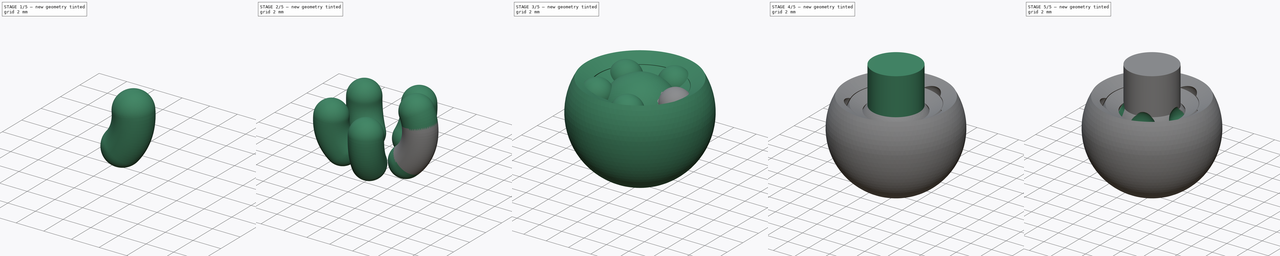
[diagram: build sequence overview — one tinted view per stage of 5, left to right]
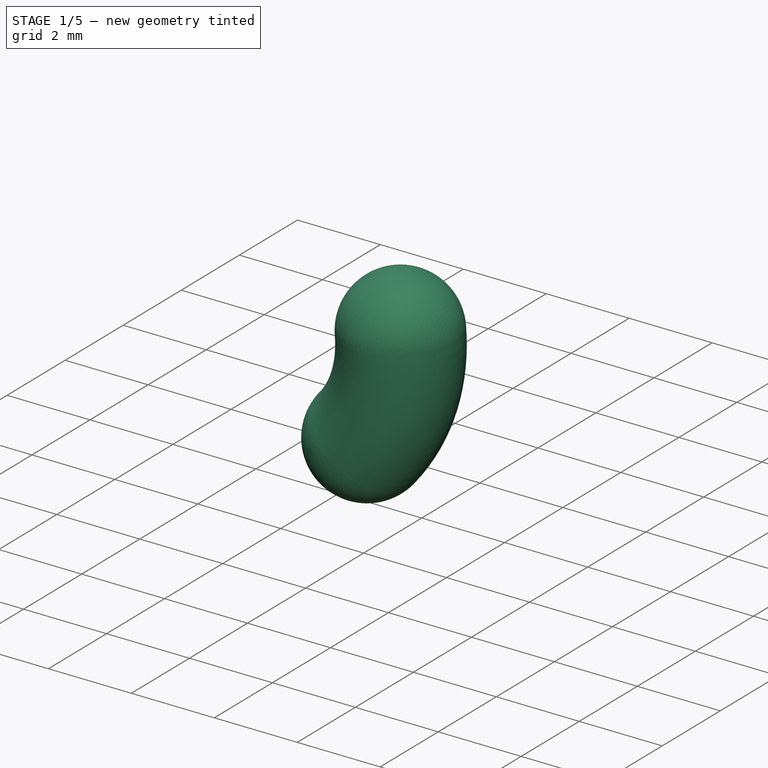
[diagram: stage 1 of 5 — iso view after this stage's code; geometry added in this stage tinted green]
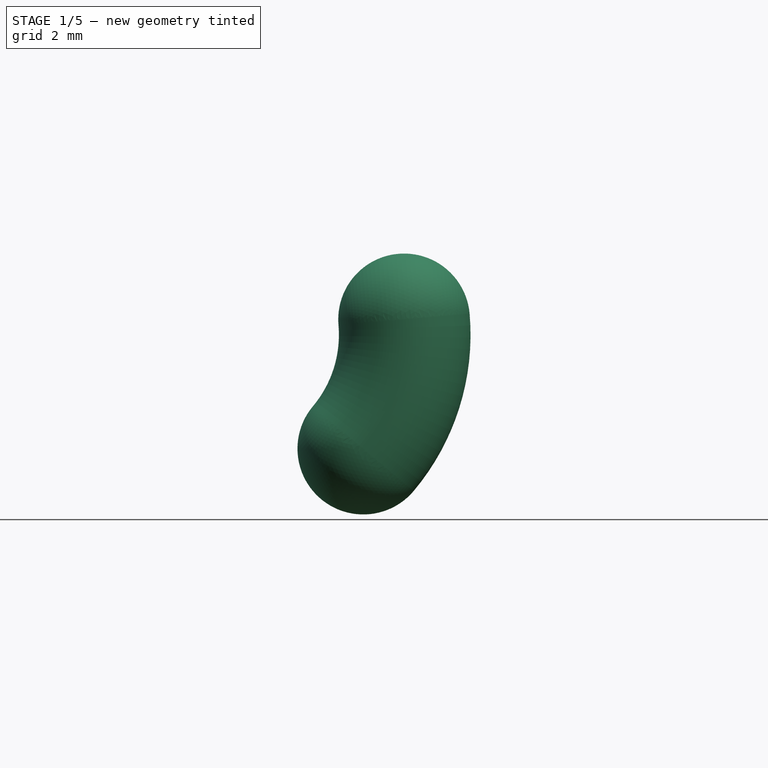
[diagram: stage 1 of 5 — front view after this stage's code; geometry added in this stage tinted green]
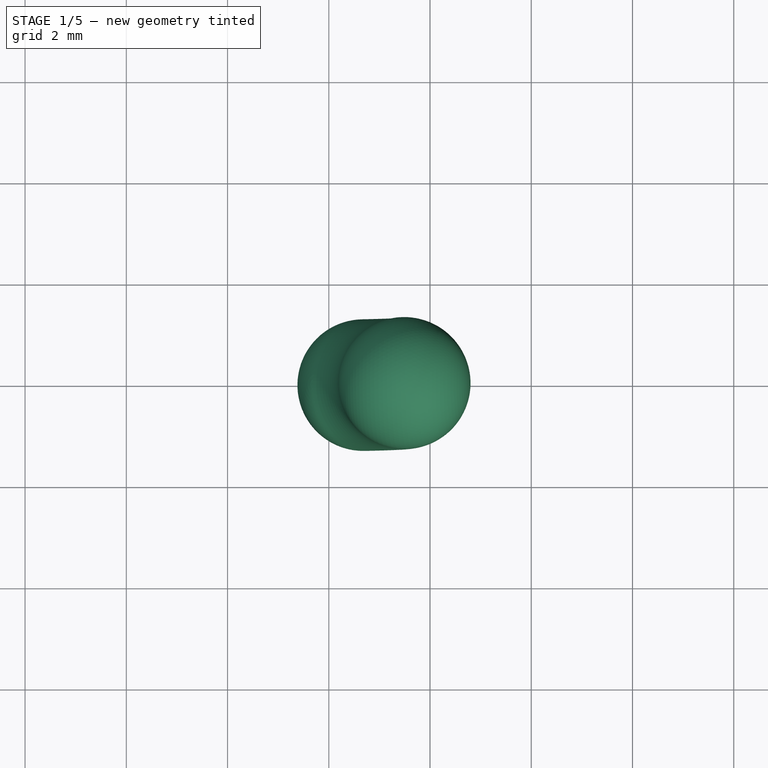
[diagram: stage 1 of 5 — top view after this stage's code; geometry added in this stage tinted green]
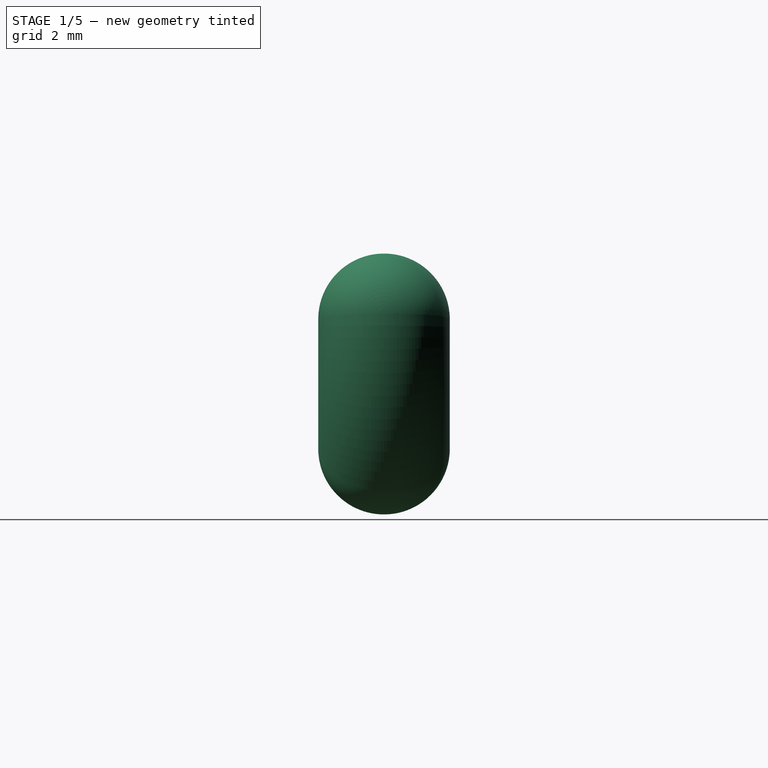
[diagram: stage 1 of 5 — right view after this stage's code; geometry added in this stage tinted green]
FCSTD DOCUMENT  (FreeCAD 1.0R39319 (Git))
Label: RzeppaJoint
Comment: A FreeCAD implementation of the Rzeppa Joint.\n\nI based this on my first iteration in OpenSCAD version, supporting some improvements\n\n- better parametric support for smaller ball sizes.\n- better c... (+48 chars)
License: All rights reserved
LicenseURL: https://en.wikipedia.org/wiki/All_rights_reserved
objects: Sketcher::SketchObject×13, PartDesign::Body×12, PartDesign::Revolution×8, PartDesign::SubShapeBinder×3, PartDesign::PolarPattern×3, PartDesign::FeatureBase×3, Part::Cut×3, PartDesign::AdditivePipe×2, App::Part×2, PartDesign::Plane×2, Spreadsheet::Sheet×2, PartDesign::Boolean×1, PartDesign::Pad×1
note: 93 computed .brp shape members not serialized (recipe doc carries the construction recipe); baked Part::Feature solids carry a one-line shape summary decoded from their .brp

FEATURE [PartDesign::SubShapeBinder] Binder
  BindCopyOnChange = 0
  BindMode = 0
  ClaimChildren = false
  Context = -> Part014 [Part004.Body008.Binder.]
  Fuse = false
  MakeFace = true
  OffsetFill = false
  OffsetIntersection = false
  OffsetJoinType = 0
  OffsetOpenResult = false
  PartialLoad = false
  Refine = true
  Relative = true
  Support = -> [Body005[Boolean.Body004.Sketch006.]]
  _Version = 2
FEATURE [PartDesign::SubShapeBinder] Binder002
  BindCopyOnChange = 0
  BindMode = 0
  ClaimChildren = false
  Context = -> Part014 [Part002.Body005.Boolean.Body003.Binder002.]
  Fuse = false
  MakeFace = true
  OffsetFill = false
  OffsetIntersection = false
  OffsetJoinType = 0
  OffsetOpenResult = false
  PartialLoad = false
  Refine = true
  Relative = true
  Support = -> [Body002[AdditivePipe.]]
  _Version = 2
FEATURE [PartDesign::SubShapeBinder] Binder003
  BindCopyOnChange = 0
  BindMode = 0
  ClaimChildren = false
  Context = -> Part014 [Part002.Body005.Boolean.Body004.Binder003.]
  Fuse = false
  MakeFace = true
  OffsetFill = false
  OffsetIntersection = false
  OffsetJoinType = 0
  OffsetOpenResult = false
  PartialLoad = false
  Refine = true
  Relative = true
  Support = -> [Body002[AdditivePipe.]]
  _Version = 2
FEATURE [Sketcher::SketchObject] Sketch001  label="rzeppa ball track"
  ArcFitTolerance = 1e-06
  AttachmentSupport = -> [XZ_Plane004]
  FullyConstrained = true
  MakeInternals = false
  MapMode = 5
  Placement = pos=(0,0,0) rot=(1,0,0;1.5708rad)
  expr: Constraints[10] = <<ss_rzeppa>>.cage_ball_track_upper_angle
  expr: Constraints[8] = <<ss_rzeppa>>.r_ball_tracks
  expr: Constraints[9] = <<ss_rzeppa>>.cage_ball_track_lower_angle
  sketch-geometry (4):
    g0: ArcOfCircle CenterX=0 CenterY=0 CenterZ=0 NormalX=0 NormalY=0 NormalZ=1 AngleXU=0 Radius=3.5 StartAngle=5.58505 EndAngle=6.37045
    g1: LineSegment [constr] StartX=0 StartY=0 StartZ=0 EndX=3.5 EndY=0 EndZ=0
    g2: LineSegment [constr] StartX=0 StartY=0 StartZ=0 EndX=3.48668 EndY=0.305045 EndZ=0
    g3: LineSegment [constr] StartX=0 StartY=0 StartZ=0 EndX=2.68116 EndY=-2.24976 EndZ=0
  constraints (11):
    c: Coincident(g0,g-1)
    c: Coincident(g1,g0)
    c: PointOnObject(g1,g0)
    c: Horizontal(g1)
    c: Coincident(g2,g0)
    c: Coincident(g2,g0)
    c: Coincident(g3,g0)
    c: Coincident(g3,g0)
    c: Radius(g0) = 3.5
    c: Angle(g3,g1) = 0.698132
    c: Angle(g1,g2) = 0.0872665
FEATURE [Sketcher::SketchObject] Sketch002  label="ball profile"
  ArcFitTolerance = 1e-06
  AttachmentSupport = -> [XY_Plane004]
  ExternalGeometry = -> [Sketch001]
  FullyConstrained = true
  MakeInternals = false
  MapMode = 5
  expr: Constraints[0] = <<ss_rzeppa>>.ball_track_diameter / 2
  sketch-geometry (1):
    g0: Circle CenterX=3.5 CenterY=-1e-16 CenterZ=0 NormalX=0 NormalY=0 NormalZ=1 AngleXU=0 Radius=1.3
  constraints (2):
    c: Radius(g0) = 1.3
    c: Coincident(g0,g-3)
FEATURE [PartDesign::AdditivePipe] AdditivePipe
  AuxilleryCurvelinear = true
  AuxillerySpineTangent = false
  Binormal = (0,0,0)
  Mode = 0
  Profile = -> Sketch002
  Refine = true
  Spine = -> Sketch001
  SpineTangent = false
  Suppressed = false
  Transformation = 0
  Transition = 0
FEATURE [PartDesign::Body] Body001  label="Body"
  AllowCompound = true
  Group = -> [Sketch004,Revolution001]
  Origin = -> Origin003
  Tip = -> Revolution001
FEATURE [Sketcher::SketchObject] Sketch005
  ArcFitTolerance = 1e-06
  AttachmentSupport = -> [Binder002]
  ExternalGeometry = -> [Binder002]
  FullyConstrained = true
  MakeInternals = false
  MapMode = 5
  Placement = pos=(1e-16,0,2e-16) rot=(0.939693,0,-0.34202;3.14159rad)
  sketch-geometry (2):
    g0: LineSegment StartX=2.2 StartY=8e-16 StartZ=0 EndX=4.8 EndY=8e-16 EndZ=0
    g1: ArcOfCircle CenterX=3.5 CenterY=6e-16 CenterZ=0 NormalX=0 NormalY=0 NormalZ=1 AngleXU=0 Radius=1.3 StartAngle=3.14159 EndAngle=6.28319
  constraints (6):
    c: PointOnObject(g0,g-3)
    c: Horizontal(g0)
    c: Coincident(g1,g-3)
    c: Coincident(g1,g0)
    c: Coincident(g1,g0)
    c: PointOnObject(g1,g0)
FEATURE [PartDesign::Revolution] Revolution002
  Angle = 360
  Angle2 = 60
  Axis = (0.766044,0,-0.642788)
  Base = (1.6853,-8e-16,-1.41413)
  Profile = -> Sketch005
  ReferenceAxis = -> Sketch005 [Edge1]
  Refine = true
  Reversed = true
  Suppressed = false
  Type = 0
FEATURE [PartDesign::Body] Body003
  AllowCompound = false
  Group = -> [Binder002,Sketch005,Revolution002]
  Origin = -> Origin005
  Tip = -> Revolution002
FEATURE [Sketcher::SketchObject] Sketch006
  ArcFitTolerance = 1e-06
  AttachmentSupport = -> [Binder003]
  ExternalGeometry = -> [Binder003]
  FullyConstrained = true
  MakeInternals = false
  MapMode = 5
  Placement = pos=(0,0,1e-16) rot=(0,-1,0;0.087266rad)
  sketch-geometry (2):
    g0: LineSegment StartX=2.2 StartY=-3e-16 StartZ=0 EndX=4.8 EndY=-3e-16 EndZ=0
    g1: ArcOfCircle CenterX=3.5 CenterY=0 CenterZ=0 NormalX=0 NormalY=0 NormalZ=1 AngleXU=0 Radius=1.3 StartAngle=3.14159 EndAngle=6.28319
  constraints (6):
    c: PointOnObject(g0,g-3)
    c: Horizontal(g0)
    c: Coincident(g1,g-3)
    c: Coincident(g1,g0)
    c: Coincident(g1,g0)
    c: PointOnObject(g1,g0)
FEATURE [PartDesign::Revolution] Revolution003
  Angle = 360
  Angle2 = 60
  Axis = (0.996195,0,0.0871557)
  Base = (2.19163,-3e-16,0.191743)
  Profile = -> Sketch006
  ReferenceAxis = -> Sketch006 [Edge1]
  Refine = true
  Reversed = true
  Suppressed = false
  Type = 0
FEATURE [PartDesign::Body] Body004
  AllowCompound = false
  Group = -> [Binder003,Sketch006,Revolution003]
  Origin = -> Origin006
  Tip = -> Revolution003
FEATURE [PartDesign::Boolean] Boolean
  Group = -> [Body004,Body003,Body002]
  Refine = true
  Suppressed = false
  Type = 0
  UsePlacement = true
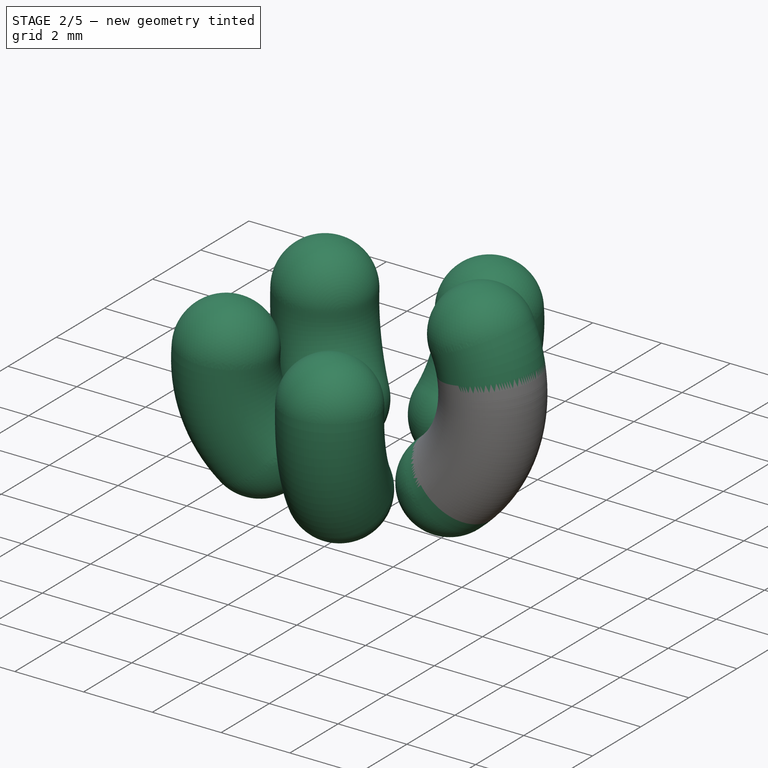
[diagram: stage 2 of 5 — iso view after this stage's code; geometry added in this stage tinted green]
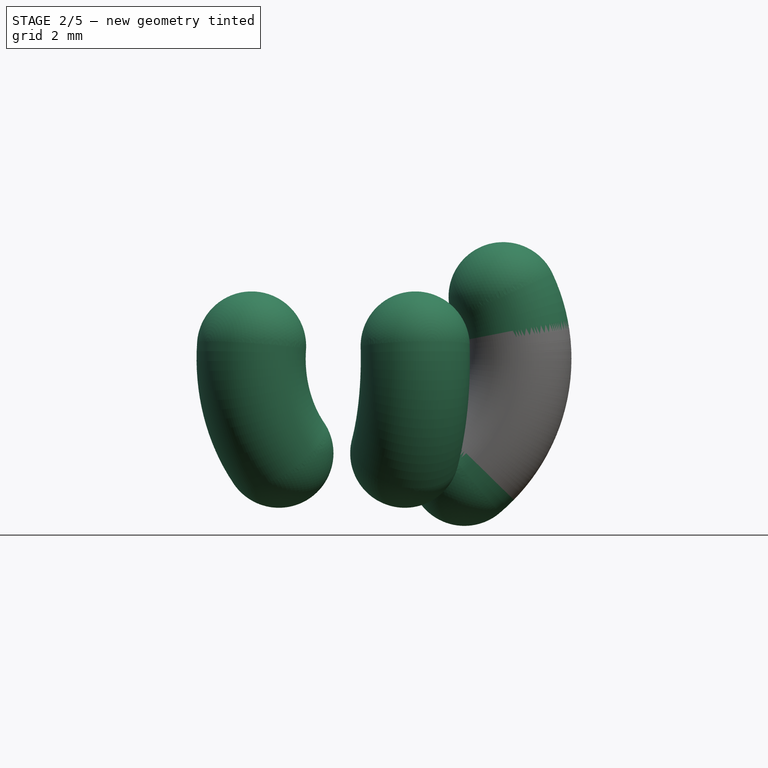
[diagram: stage 2 of 5 — front view after this stage's code; geometry added in this stage tinted green]
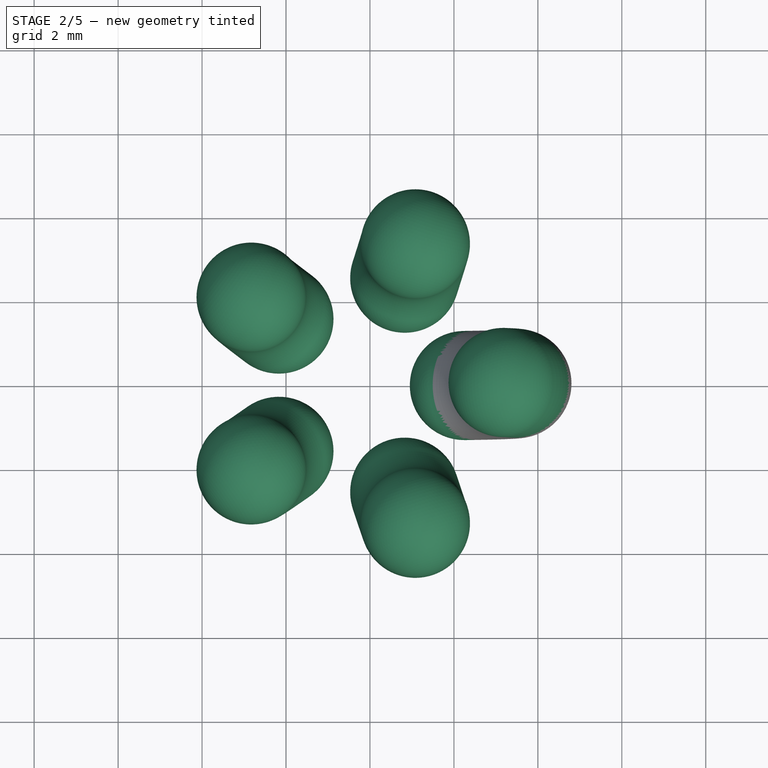
[diagram: stage 2 of 5 — top view after this stage's code; geometry added in this stage tinted green]
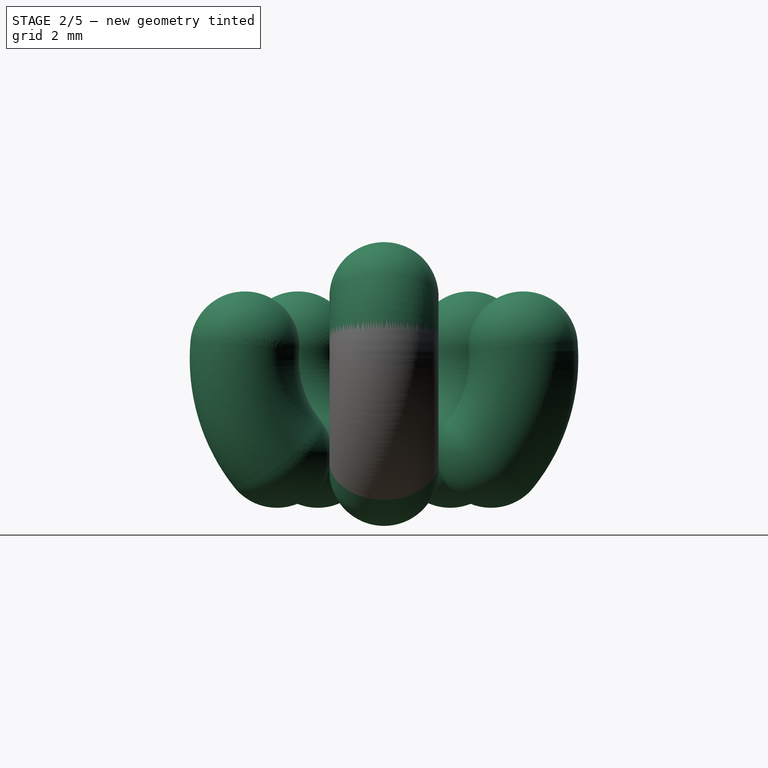
[diagram: stage 2 of 5 — right view after this stage's code; geometry added in this stage tinted green]
FEATURE [PartDesign::PolarPattern] PolarPattern
  Angle = 360
  Axis = -> Z_Axis009
  BaseFeature = -> Boolean
  Mode = 0
  Occurrences = 5
  Offset = 120
  Originals = -> [Boolean]
  Refine = true
  Suppressed = false
  TransformMode = 1
  expr: Occurrences = <<ss_rzeppa>>.rzeppa_num_balls
FEATURE [PartDesign::Body] Body008  label="a rzeppa ball"
  AllowCompound = true
  Group = -> [Binder,Sketch007,Revolution004,PolarPattern002]
  Origin = -> Origin012
  Tip = -> PolarPattern002
FEATURE [App::Part] Part004  label="rzeppa balls"
  Group = -> [Body008]
  Origin = -> Origin019
FEATURE [Sketcher::SketchObject] Sketch048  label="rzeppa ball track002"
  ArcFitTolerance = 1e-06
  AttachmentSupport = -> [XZ_Plane064]
  FullyConstrained = true
  MakeInternals = false
  MapMode = 5
  Placement = pos=(0,0,0) rot=(1,0,0;1.5708rad)
  expr: Constraints[10] = <<ss_rzeppa>>.race_ball_track_upper_angle
  expr: Constraints[8] = <<ss_rzeppa>>.r_ball_tracks
  expr: Constraints[9] = <<ss_rzeppa>>.race_ball_track_lower_angle
  sketch-geometry (4):
    g0: ArcOfCircle CenterX=0 CenterY=0 CenterZ=0 NormalX=0 NormalY=0 NormalZ=1 AngleXU=0 Radius=3.5 StartAngle=5.41052 EndAngle=6.71952
    g1: LineSegment [constr] StartX=0 StartY=0 StartZ=0 EndX=3.5 EndY=0 EndZ=0
    g2: LineSegment [constr] StartX=0 StartY=0 StartZ=0 EndX=3.17208 EndY=1.47916 EndZ=0
    g3: LineSegment [constr] StartX=0 StartY=0 StartZ=0 EndX=2.24976 EndY=-2.68116 EndZ=0
  constraints (11):
    c: Coincident(g0,g-1)
    c: Coincident(g1,g0)
    c: PointOnObject(g1,g0)
    c: Horizontal(g1)
    c: Coincident(g2,g0)
    c: Coincident(g2,g0)
    c: Coincident(g3,g0)
    c: Coincident(g3,g0)
    c: Radius(g0) = 3.5
    c: Angle(g3,g1) = 0.872665
    c: Angle(g1,g2) = 0.436332
FEATURE [Sketcher::SketchObject] Sketch049  label="ball profile002"
  ArcFitTolerance = 1e-06
  AttachmentSupport = -> [XY_Plane064]
  ExternalGeometry = -> [Sketch048]
  FullyConstrained = true
  MakeInternals = false
  MapMode = 5
  expr: Constraints[0] = <<ss_rzeppa>>.ball_track_diameter / 2
  sketch-geometry (1):
    g0: Circle CenterX=3.5 CenterY=-1e-16 CenterZ=0 NormalX=0 NormalY=0 NormalZ=1 AngleXU=0 Radius=1.3
  constraints (2):
    c: Radius(g0) = 1.3
    c: Coincident(g0,g-3)
FEATURE [PartDesign::AdditivePipe] AdditivePipe002
  AuxilleryCurvelinear = true
  AuxillerySpineTangent = false
  Binormal = (0,0,0)
  Mode = 0
  Profile = -> Sketch049
  Refine = true
  Spine = -> Sketch048
  SpineTangent = false
  Suppressed = false
  Transformation = 0
  Transition = 0
FEATURE [PartDesign::Plane] DatumPlane
  AttachmentSupport = -> [AdditivePipe002]
  Length = 77.9742
  MapMode = 5
  Placement = pos=(-3e-16,0,6e-16) rot=(0,-1,0;0.436332rad)
  ResizeMode = 0
  Width = 61.5279
FEATURE [PartDesign::Plane] DatumPlane001
  AttachmentSupport = -> [AdditivePipe002]
  Length = 61.8694
  MapMode = 5
  Placement = pos=(-2e-16,0,-1e-16) rot=(0.671543,-0.671543,-0.313146;2.53465rad)
  ResizeMode = 0
  Width = 82.311
FEATURE [Sketcher::SketchObject] Sketch
  ArcFitTolerance = 1e-06
  AttachmentSupport = -> [DatumPlane]
  FullyConstrained = true
  MakeInternals = false
  MapMode = 5
  Placement = pos=(-3e-16,0,6e-16) rot=(0,-1,0;0.436332rad)
  expr: Constraints[5] = <<ss_rzeppa>>.ball_track_diameter / 2
  expr: Constraints[6] = <<ss_rzeppa>>.r_ball_tracks
  sketch-geometry (2):
    g0: ArcOfCircle CenterX=3.5 CenterY=0 CenterZ=0 NormalX=0 NormalY=0 NormalZ=1 AngleXU=0 Radius=1.3 StartAngle=3.14159 EndAngle=6.28319
    g1: LineSegment StartX=2.2 StartY=2e-16 StartZ=0 EndX=4.8 EndY=2e-16 EndZ=0
  constraints (7):
    c: PointOnObject(g0,g-1)
    c: PointOnObject(g0,g-1)
    c: Coincident(g1,g0)
    c: Coincident(g1,g0)
    c: Horizontal(g1)
    c: Radius(g0) = 1.3
    c: DistanceX(g-1,g0) = 3.5
FEATURE [PartDesign::Revolution] Revolution
  Angle = 180
  Angle2 = 60
  Axis = (0.906308,0,0.422618)
  Base = (-3e-16,0,6e-16)
  BaseFeature = -> AdditivePipe002
  Profile = -> Sketch
  ReferenceAxis = -> Sketch [H_Axis]
  Refine = true
  Reversed = true
  Suppressed = false
  Type = 0
FEATURE [PartDesign::Body] Body050  label="rzeppa outer race body"
  AllowCompound = false
  Group = -> [Sketch053,Revolution017]
  Origin = -> Origin067
  Tip = -> Revolution017
FEATURE [Sketcher::SketchObject] Sketch054
  ArcFitTolerance = 1e-06
  AttachmentSupport = -> [DatumPlane001]
  ExternalGeometry = -> [Sketch048]
  FullyConstrained = true
  MakeInternals = false
  MapMode = 5
  Placement = pos=(-2e-16,0,-1e-16) rot=(0.671543,-0.671543,-0.313146;2.53465rad)
  expr: Constraints[1] = <<ss_rzeppa>>.ball_track_diameter / 2
  sketch-geometry (2):
    g0: ArcOfCircle CenterX=1e-16 CenterY=-3.5 CenterZ=0 NormalX=0 NormalY=0 NormalZ=1 AngleXU=0 Radius=1.3 StartAngle=4.71239 EndAngle=7.85398
    g1: LineSegment StartX=-7e-16 StartY=-2.2 StartZ=0 EndX=-1e-16 EndY=-4.8 EndZ=0
  constraints (6):
    c: PointOnObject(g0,g-2)
    c: Radius(g0) = 1.3
    c: Coincident(g1,g0)
    c: Coincident(g1,g0)
    c: Coincident(g0,g-3)
    c: PointOnObject(g0,g-3)
FEATURE [PartDesign::Revolution] Revolution018
  Angle = 360
  Angle2 = 60
  Axis = (-0.642788,2e-16,0.766044)
  Base = (-2e-16,0,-1e-16)
  BaseFeature = -> Revolution
  Profile = -> Sketch054
  ReferenceAxis = -> Sketch054 [V_Axis]
  Refine = true
  Reversed = true
  Suppressed = false
  Type = 0
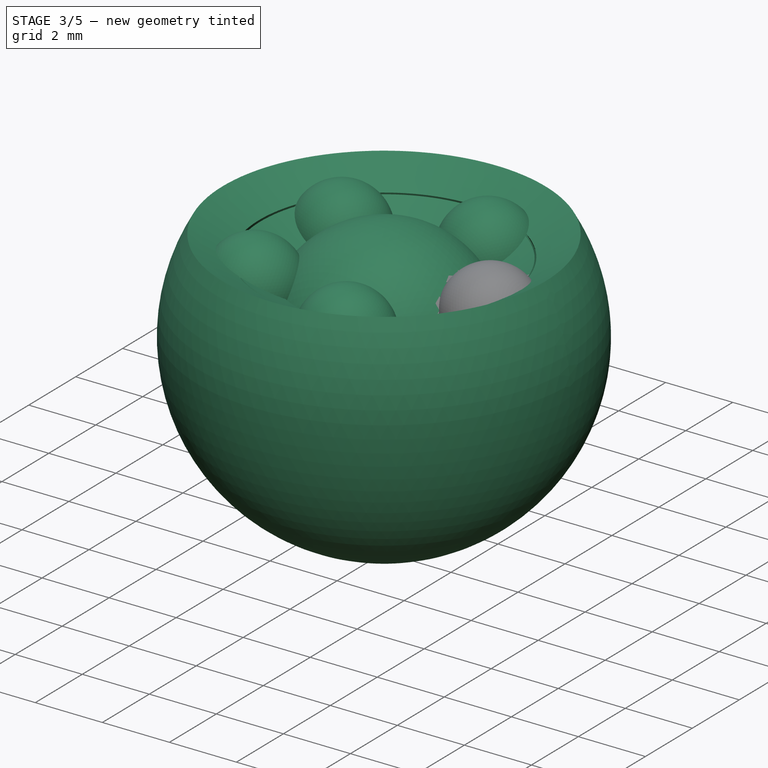
[diagram: stage 3 of 5 — iso view after this stage's code; geometry added in this stage tinted green]
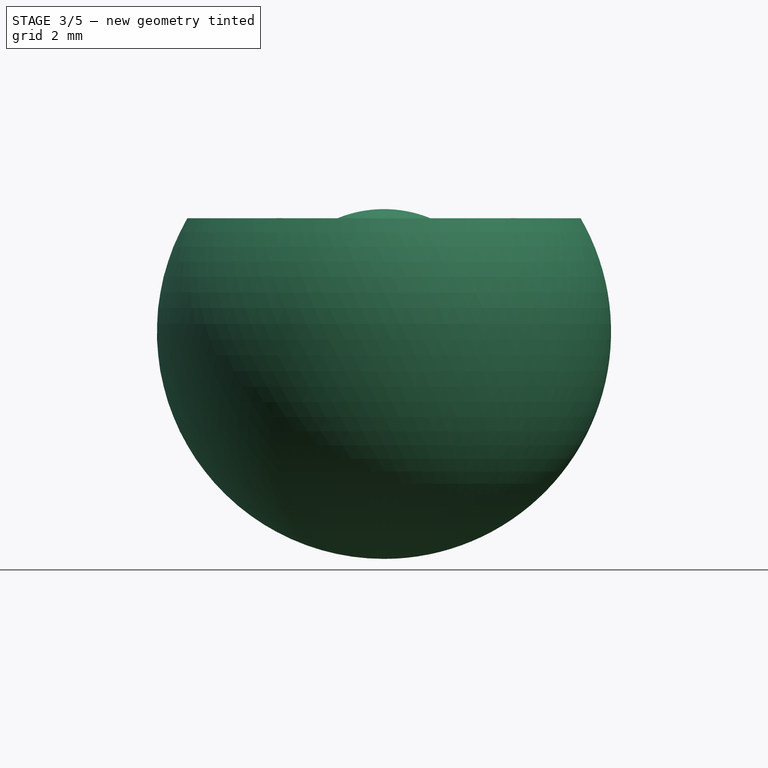
[diagram: stage 3 of 5 — front view after this stage's code; geometry added in this stage tinted green]
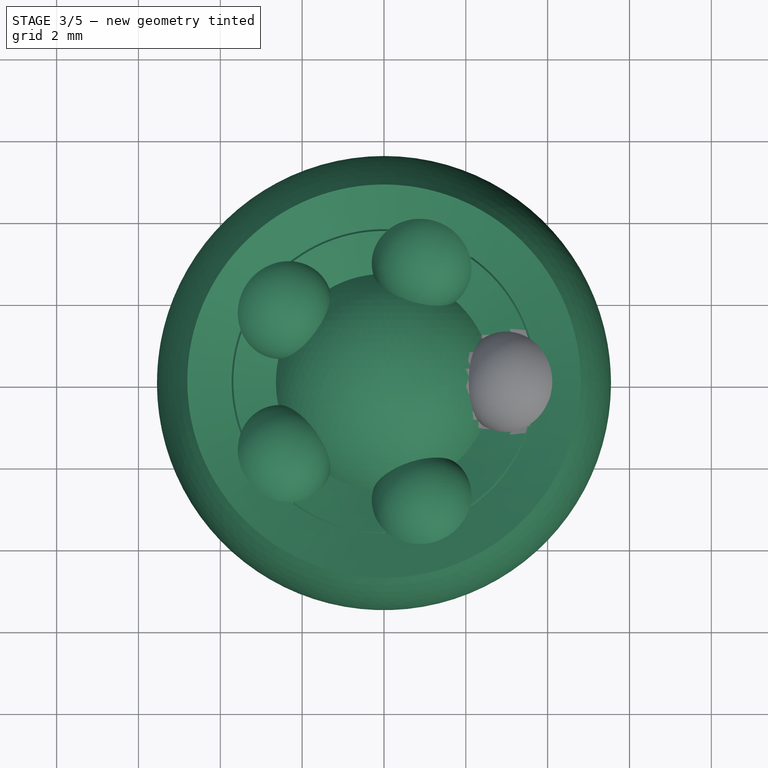
[diagram: stage 3 of 5 — top view after this stage's code; geometry added in this stage tinted green]
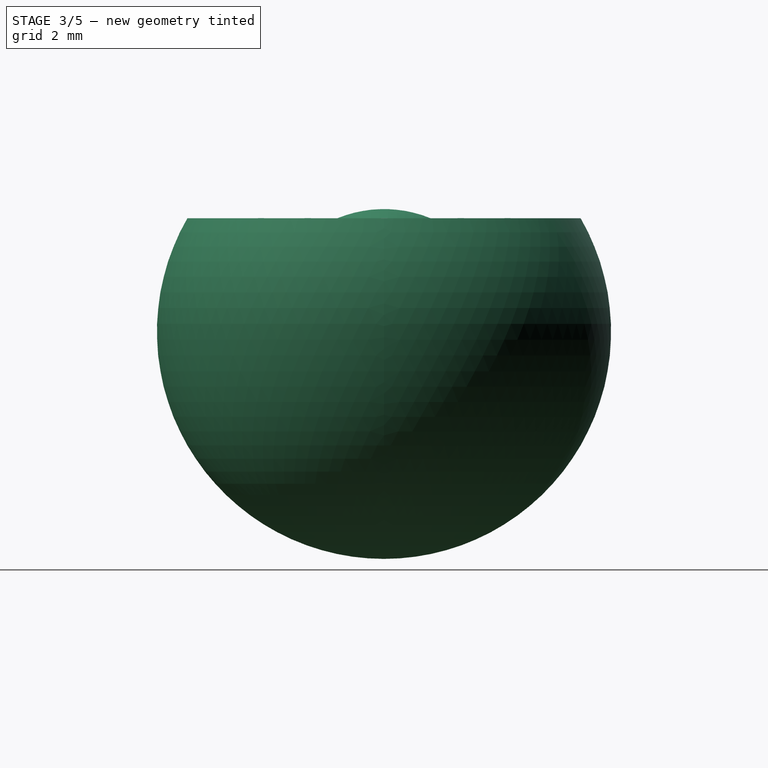
[diagram: stage 3 of 5 — right view after this stage's code; geometry added in this stage tinted green]
FEATURE [PartDesign::Body] Body002  label="ball track for cage additive pipe"
  AllowCompound = true
  Group = -> [Sketch002,Sketch001,AdditivePipe]
  Origin = -> Origin004
  Tip = -> AdditivePipe
FEATURE [Sketcher::SketchObject] Sketch004
  ArcFitTolerance = 1e-06
  AttachmentSupport = -> [XZ_Plane003]
  FullyConstrained = true
  MakeInternals = false
  MapMode = 5
  Placement = pos=(0,0,0) rot=(1,0,0;1.5708rad)
  expr: Constraints[14] = <<ss_rzeppa>>.outer_opening_angle
  expr: Constraints[1] = <<ss_rzeppa>>.r_cage_max
  expr: Constraints[4] = <<ss_rzeppa>>.r_cage_min
  expr: Constraints[7] = <<ss_rzeppa>>.cage_height / 2 + 1.5 * <<ss_rzeppa>>.r_ball
  sketch-geometry (5):
    g0: ArcOfCircle CenterX=0 CenterY=0 CenterZ=0 NormalX=0 NormalY=0 NormalZ=1 AngleXU=0 Radius=4.25 StartAngle=5.45708 EndAngle=6.80678
    g1: ArcOfCircle CenterX=0 CenterY=0 CenterZ=0 NormalX=0 NormalY=0 NormalZ=1 AngleXU=0 Radius=3.05 StartAngle=4.71239 EndAngle=6.80678
    g2: LineSegment StartX=0 StartY=-3.125 StartZ=0 EndX=2.88043 EndY=-3.125 EndZ=0
    g3: LineSegment StartX=-6e-16 StartY=-3.05 StartZ=0 EndX=0 EndY=-3.125 EndZ=0
    g4: LineSegment StartX=3.68061 StartY=2.125 StartZ=0 EndX=2.64138 EndY=1.525 EndZ=0
  constraints (15):
    c: Coincident(g0,g-1)
    c: Radius(g0) = 4.25
    c: Coincident(g1,g0)
    c: PointOnObject(g1,g-2)
    c: Radius(g1) = 3.05
    c: PointOnObject(g2,g-2)
    c: Horizontal(g2)
    c: DistanceY(g2,g0) = 3.125
    c: Coincident(g3,g1)
    c: Coincident(g3,g2)
    c: Coincident(g2,g0)
    c: Coincident(g4,g0)
    c: Perpendicular(g0,g4)
    c: Coincident(g1,g4)
    c: Angle(g-1,g4) = 0.523599
FEATURE [PartDesign::Revolution] Revolution001  label="base rzeppa cage"
  Angle = 360
  Angle2 = 60
  Axis = (0,2e-16,1)
  Base = (0,0,0)
  Placement = pos=(0,0,0) rot=(1,0,0;1.5708rad)
  Profile = -> Sketch004
  ReferenceAxis = -> Sketch004 [V_Axis]
  Refine = true
  Reversed = true
  Suppressed = false
  Type = 0
FEATURE [Sketcher::SketchObject] Sketch007
  ArcFitTolerance = 1e-06
  AttachmentSupport = -> [Binder]
  ExternalGeometry = -> [Binder]
  FullyConstrained = true
  MakeInternals = false
  MapMode = 5
  Placement = pos=(0,0,1e-16) rot=(0,-1,0;0.087266rad)
  sketch-geometry (2):
    g0: LineSegment StartX=2.2 StartY=-4e-16 StartZ=0 EndX=4.8 EndY=-4e-16 EndZ=0
    g1: ArcOfCircle CenterX=3.5 CenterY=0 CenterZ=0 NormalX=0 NormalY=0 NormalZ=1 AngleXU=0 Radius=1.3 StartAngle=3.14159 EndAngle=6.28319
  constraints (5):
    c: Coincident(g0,g-3)
    c: Coincident(g1,g-3)
    c: Coincident(g1,g0)
    c: Coincident(g1,g0)
    c: Horizontal(g0)
FEATURE [PartDesign::Revolution] Revolution004
  Angle = 360
  Angle2 = 60
  Axis = (0.996195,0,0.0871557)
  Base = (2.19163,-4e-16,0.191743)
  Profile = -> Sketch007
  ReferenceAxis = -> Sketch007 [Edge1]
  Refine = true
  Reversed = true
  Suppressed = false
  Type = 0
FEATURE [Sketcher::SketchObject] Sketch051  label="center sphere sketch001"
  ArcFitTolerance = 1e-06
  AttachmentSupport = -> [XY_Plane066]
  FullyConstrained = true
  MakeInternals = false
  MapMode = 5
  expr: Constraints[1] = <<ss_rzeppa>>.r_inner + <<ss_rzeppa>>.r_inner_adjust
  sketch-geometry (2):
    g0: ArcOfCircle CenterX=-1.3e-15 CenterY=0 CenterZ=0 NormalX=0 NormalY=0 NormalZ=1 AngleXU=0 Radius=3 StartAngle=4.71239 EndAngle=7.85398
    g1: LineSegment StartX=-1.3e-15 StartY=3 StartZ=0 EndX=-1.3e-15 EndY=-3 EndZ=0
  constraints (6):
    c: Coincident(g0,g-1)
    c: Radius(g0) = 3
    c: Vertical(g1)
    c: Coincident(g0,g1)
    c: Coincident(g0,g1)
    c: Vertical(g0,g0)
FEATURE [PartDesign::Revolution] Revolution016  label="base rzeppa inner race sphere001"
  Angle = 360
  Angle2 = 60
  Axis = (0,1,0)
  Base = (0,0,0)
  Profile = -> Sketch051
  ReferenceAxis = -> Sketch051 [V_Axis]
  Refine = true
  Suppressed = false
  Type = 0
FEATURE [PartDesign::Body] Body049  label="rzeppa inner race body001"
  AllowCompound = false
  Group = -> [Sketch051,Revolution016,Pad020,Sketch052]
  Origin = -> Origin066
  Tip = -> Pad020
FEATURE [Sketcher::SketchObject] Sketch053
  ArcFitTolerance = 1e-06
  AttachmentSupport = -> [XZ_Plane067]
  FullyConstrained = true
  MakeInternals = false
  MapMode = 5
  Placement = pos=(0,0,0) rot=(1,0,0;1.5708rad)
  expr: Constraints[0] = <<ss_rzeppa>>.r_outer_int
  expr: Constraints[18] = <<ss_rzeppa>>.r_outer_int - <<ss_rzeppa>>.r_ball / 2
  expr: Constraints[1] = <<ss_rzeppa>>.outer_opening_angle
  expr: Constraints[6] = <<ss_rzeppa>>.r_outer_ext
  sketch-geometry (6):
    g0: ArcOfCircle CenterX=0 CenterY=0 CenterZ=0 NormalX=0 NormalY=0 NormalZ=1 AngleXU=0 Radius=4.3 StartAngle=5.25831 EndAngle=6.80678
    g1: LineSegment [constr] StartX=0 StartY=0 StartZ=0 EndX=4.80644 EndY=2.775 EndZ=0
    g2: LineSegment StartX=3.72391 StartY=2.15 StartZ=0 EndX=4.80644 EndY=2.775 EndZ=0
    g3: ArcOfCircle CenterX=0 CenterY=0 CenterZ=0 NormalX=0 NormalY=0 NormalZ=1 AngleXU=0 Radius=5.55 StartAngle=4.71239 EndAngle=6.80678
    g4: LineSegment StartX=2.23257 StartY=-3.675 StartZ=0 EndX=-9e-16 EndY=-3.675 EndZ=0
    g5: LineSegment StartX=-1e-15 StartY=-3.675 StartZ=0 EndX=-1e-15 EndY=-5.55 EndZ=0
  constraints (19):
    c: Radius(g0) = 4.3
    c: Angle(g-1,g1) = 0.523599
    c: PointOnObject(g2,g1)
    c: Coincident(g0,g2)
    c: Coincident(g3,g0)
    c: Coincident(g3,g2)
    c: Radius(g3) = 5.55
    c: PointOnObject(g0,g-2)
    c: PointOnObject(g0,g-1)
    c: PointOnObject(g1,g-2)
    c: PointOnObject(g1,g-1)
    c: Coincident(g1,g2)
    c: Coincident(g4,g0)
    c: PointOnObject(g4,g-2)
    c: Horizontal(g4)
    c: Coincident(g5,g4)
    c: Coincident(g5,g3)
    c: Vertical(g5)
    c: DistanceY(g4,g1) = 3.675
FEATURE [PartDesign::Revolution] Revolution017
  Angle = 360
  Angle2 = 60
  Axis = (0,2e-16,1)
  Base = (0,0,0)
  Placement = pos=(0,0,0) rot=(1,0,0;1.5708rad)
  Profile = -> Sketch053
  ReferenceAxis = -> Sketch053 [V_Axis]
  Refine = true
  Reversed = true
  Suppressed = false
  Type = 0
FEATURE [PartDesign::PolarPattern] PolarPattern012
  Angle = 360
  Axis = -> Z_Axis064
  BaseFeature = -> Revolution018
  Mode = 0
  Occurrences = 5
  Offset = 120
  Refine = true
  Suppressed = false
  TransformMode = 1
  expr: Occurrences = <<ss_rzeppa>>.rzeppa_num_balls
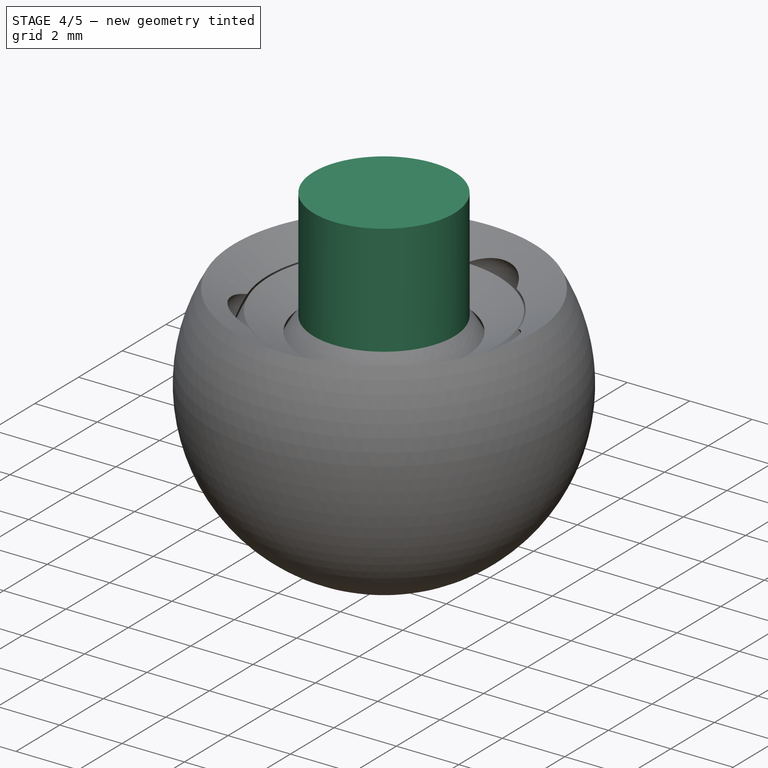
[diagram: stage 4 of 5 — iso view after this stage's code; geometry added in this stage tinted green]
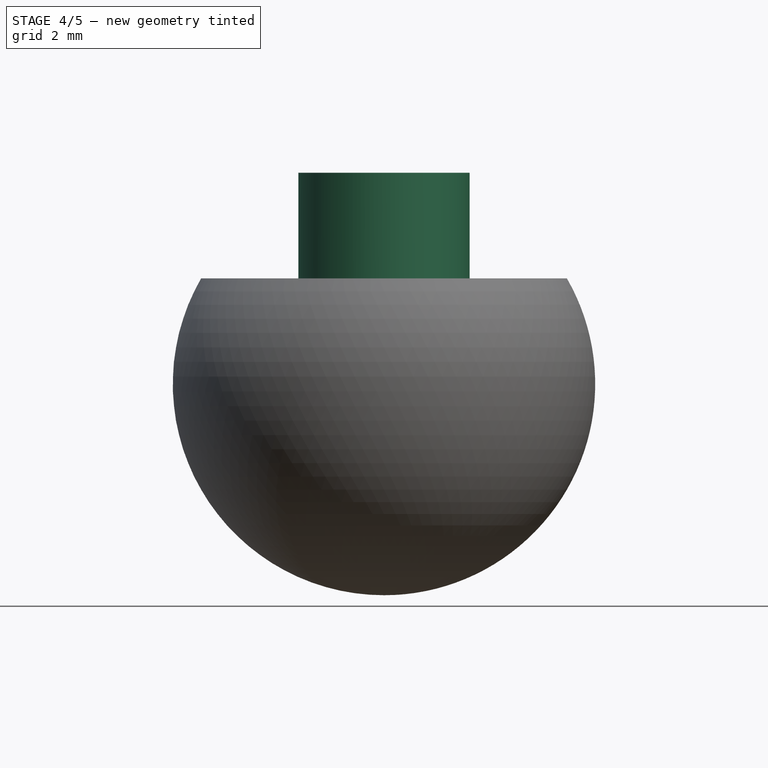
[diagram: stage 4 of 5 — front view after this stage's code; geometry added in this stage tinted green]
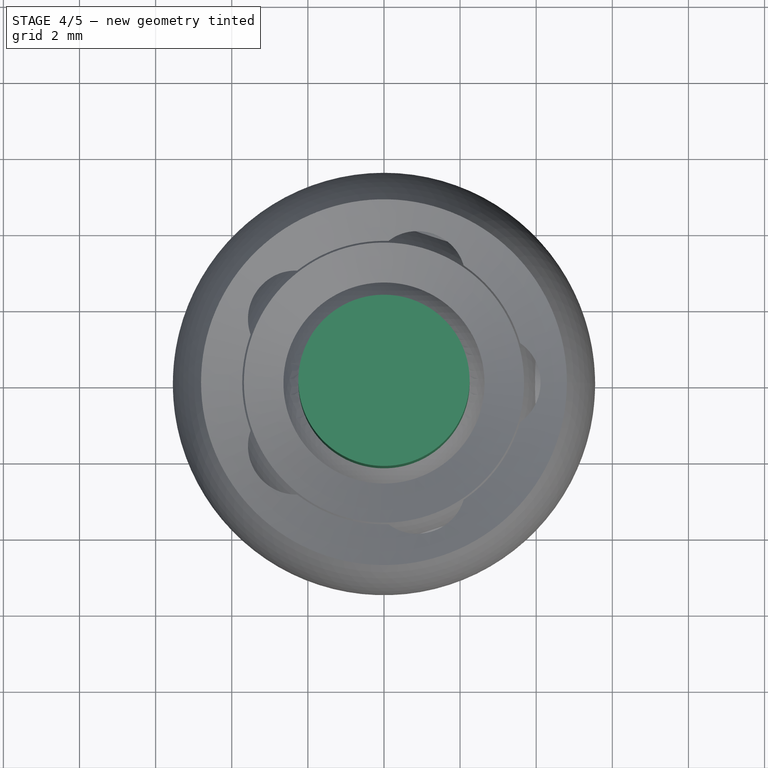
[diagram: stage 4 of 5 — top view after this stage's code; geometry added in this stage tinted green]
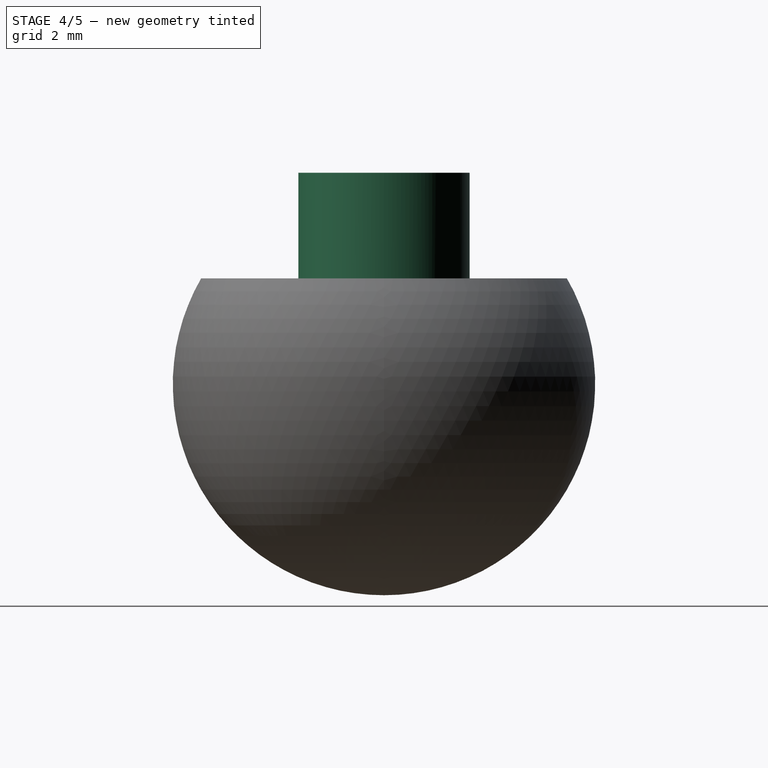
[diagram: stage 4 of 5 — right view after this stage's code; geometry added in this stage tinted green]
FEATURE [PartDesign::PolarPattern] PolarPattern002
  Angle = 360
  Axis = -> Sketch007 [N_Axis]
  BaseFeature = -> Revolution004
  Mode = 0
  Occurrences = 5
  Offset = 120
  Originals = -> [Revolution004]
  Refine = true
  Suppressed = false
  TransformMode = 0
FEATURE [Sketcher::SketchObject] Sketch052
  ArcFitTolerance = 1e-06
  AttachmentOffset = pos=(0,0,1.5) rot=(0,0,1;0rad)
  AttachmentSupport = -> [XY_Plane066]
  FullyConstrained = true
  MakeInternals = false
  MapMode = 5
  Placement = pos=(0,0,1.5) rot=(0,0,1;0rad)
  expr: .AttachmentOffset.Base.z = <<ss_rzeppa>>.r_inner / 2
  expr: Constraints[1] = <<ss_rzeppa>>.r_inner * 1.5
  sketch-geometry (1):
    g0: Circle CenterX=0 CenterY=0 CenterZ=0 NormalX=0 NormalY=0 NormalZ=1 AngleXU=0 Radius=2.25
  constraints (2):
    c: Coincident(g0,g-1)
    c: Diameter(g0) = 4.5
FEATURE [PartDesign::Pad] Pad020  label="rzeppa inner race shaft attachment001"
  BaseFeature = -> Revolution016
  Direction = (0,0,1)
  Length = 4.05
  Length2 = 10
  Profile = -> Sketch052
  ReferenceAxis = -> Sketch052 [N_Axis]
  Refine = true
  Suppressed = false
  Type = 0
  expr: Length = <<ss_rzeppa>>.inner_shaft_attachment_length
FEATURE [PartDesign::Body] Body  label="clone of rzeppa ball tracks"
  AllowCompound = false
  Group = -> [Clone016]
  Origin = -> Origin068
  Tip = -> Clone016
FEATURE [PartDesign::FeatureBase] Clone017
  BaseFeature = -> Body047
  Suppressed = false
FEATURE [Part::Cut] Cut007  label="rzeppa outer race"
  Base = -> Body050
  Refine = true
  Tool = -> Body051
FEATURE [Spreadsheet::Sheet] Spreadsheet  label="ss_rzeppa"
  cells = A1='Parameter; B1='Value; D1='Description; E1='Range; A2='ball diameter; B2(ball_diameter)=2.5; A3='rzeppa number balls; B3(rzeppa_num_balls)=5; A4='inner multiplier; B4(inner_multiplier)=1.2; D4='The size of the inner race relative to the ball size; E4='1.0 : 0.05 : 1.5; A6='outer multiplier; B6(outer_multiplier)=1; D6='The thickness of the outer race relative to the ball size; E6='1.0 : 0.05 : 5; A7='ball track translation; B7(ball_track_translation)=0.4; D7='The preference for the ball tracks to be more on inner or outer race; E7='0 : 0.1 : 0.5; A8='clearance; B8(clearance)=0.05; D8='Tolerance for gaps between parts in 3D printing; A9='ball track diameter; B9(ball_track_diameter)==ball_diameter + 2 * <<ss_global>>.clearance; A10='race ball track upper angle; B10(race_ball_track_upper_angle)=25; A11='race ball track lower angle; B11(race_ball_track_lower_angle)=50; A12='cage ball track upper angle; B12(cage_ball_track_upper_angle)=5; D12='Maximum cut angle for the ball track going up; A13='cage ball track lower angle; B13(cage_ball_track_lower_angle)=40; D13='Maximum cut angle for the ball track going down; A14='cage slot upper angle; B14(cage_slot_upper_angle)=0; A15='cage slot lower angle; B15(cage_slot_lower_angle)=22.5; A20='Derived properties; A21='r ball; B21(r_ball)==ball_diameter / 2; A22='r inner; B22(r_inner)==ball_diameter * inner_multiplier; C22(r_inner_adjust)=0; A23='cage height; B23(cage_height)==2 * r_ball; A24='cage thickness; B24(cage_thickness)==max(3 * <<ss_global>>.min_feature_size; ball_diameter / 3); A25='r_cage_min; B25(r_cage_min)==r_inner + clearance; A26='r_cage_max; B26(r_cage_max)==r_cage_min + cage_thickness; A27='r outer int; B27(r_outer_int)==r_cage_max + clearance; A28='wall thickness; B28(wall_thickness)==r_ball * outer_multiplier; A29='r outer ext; B29(r_outer_ext)==r_outer_int + wall_thickness; A30='r ball tracks; B30(r_ball_tracks)==r_inner + r_ball * ball_track_translation; A31='opening radius; B31(opening_radius)==r_inner + clearance; A32='outer opening angle; B32(outer_opening_angle)=30; D32==race_ball_track_upper_angle + r_ball / r_outer_ext * 180 / pi; A33='inner_shaft_attachment_length; B33(inner_shaft_attachment_length)==r_outer_ext - .r_inner / 2; A34='inner_shaft_end_face; B34(inner_shaft_end_face)==inner_shaft_attachment_length + r_inner / 2; D34='This is useful for other sketches to attach to this plane, like the spline shaft body
FEATURE [App::Part] Part014  label="rzeppa joint"
  Group = -> [Spreadsheet,Body005,Body047,Part004,Body001,Body006,Cut001,Body049,Body,Cut,Body050,Body051,Cut007]
  Origin = -> Origin061
FEATURE [Spreadsheet::Sheet] Spreadsheet004  label="ss_global"
  cells = A1='clearance; B1(clearance)=0.05; C1='The space we use between ball bearings and race ways; A2='min feature size; B2(min_feature_size)=0.4; C2='The smallest thing we are capable of printing
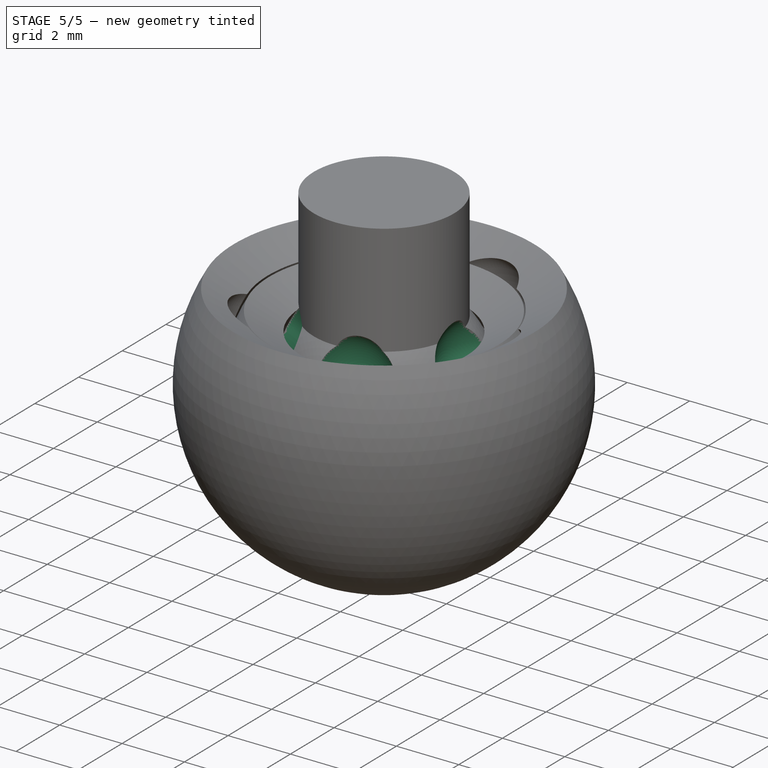
[diagram: stage 5 of 5 — iso view after this stage's code; geometry added in this stage tinted green]
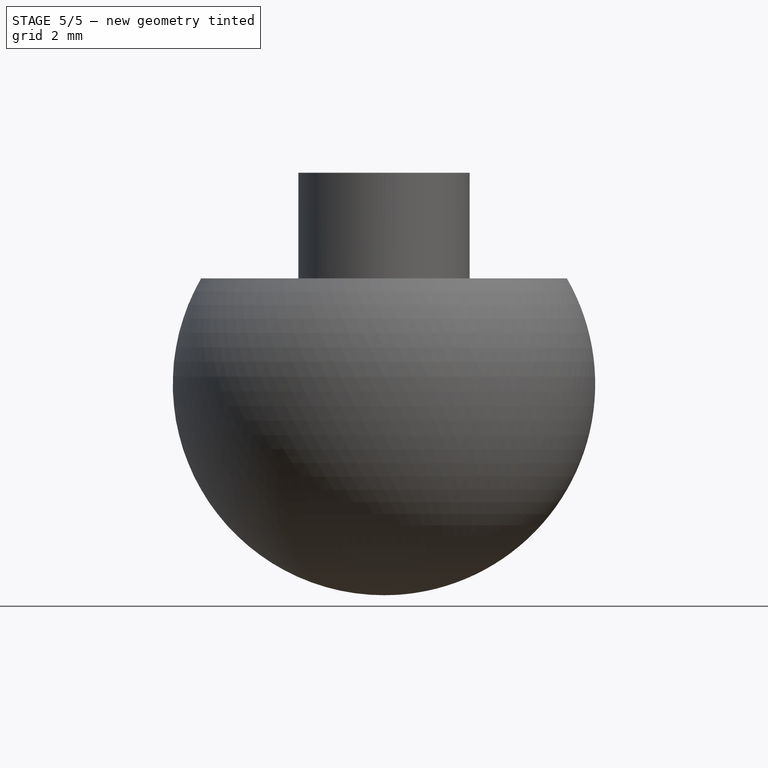
[diagram: stage 5 of 5 — front view after this stage's code; geometry added in this stage tinted green]
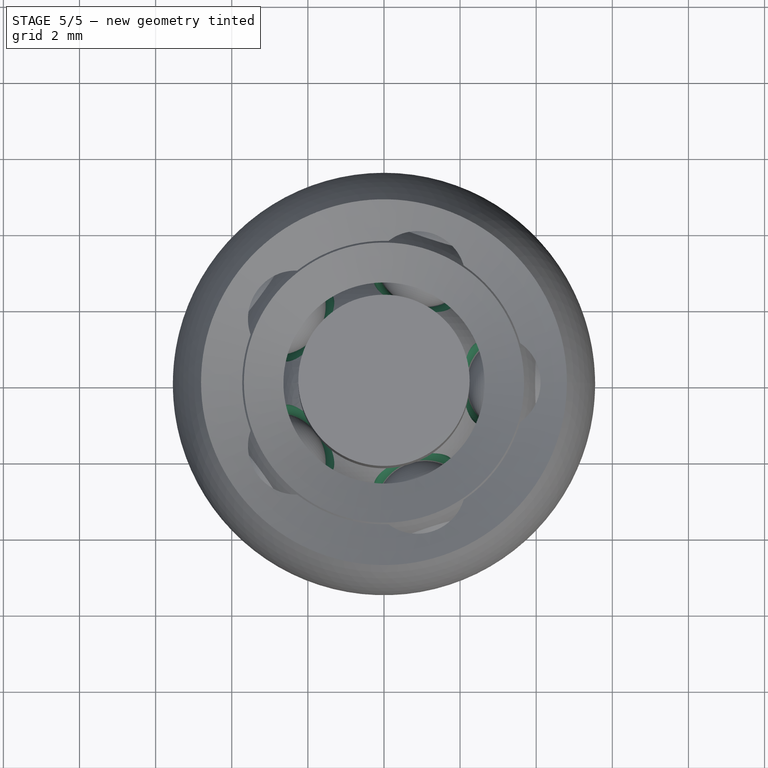
[diagram: stage 5 of 5 — top view after this stage's code; geometry added in this stage tinted green]
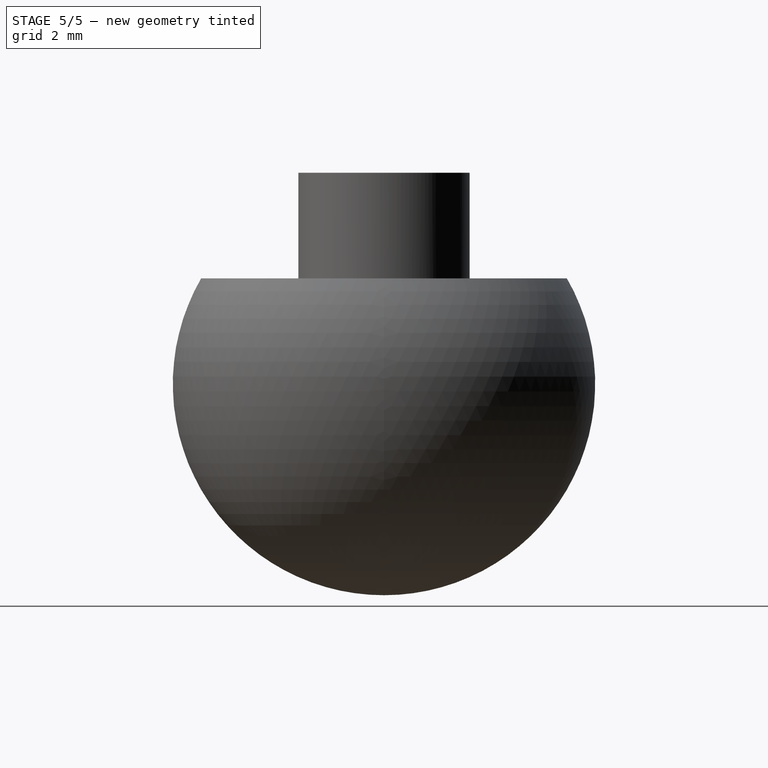
[diagram: stage 5 of 5 — right view after this stage's code; geometry added in this stage tinted green]
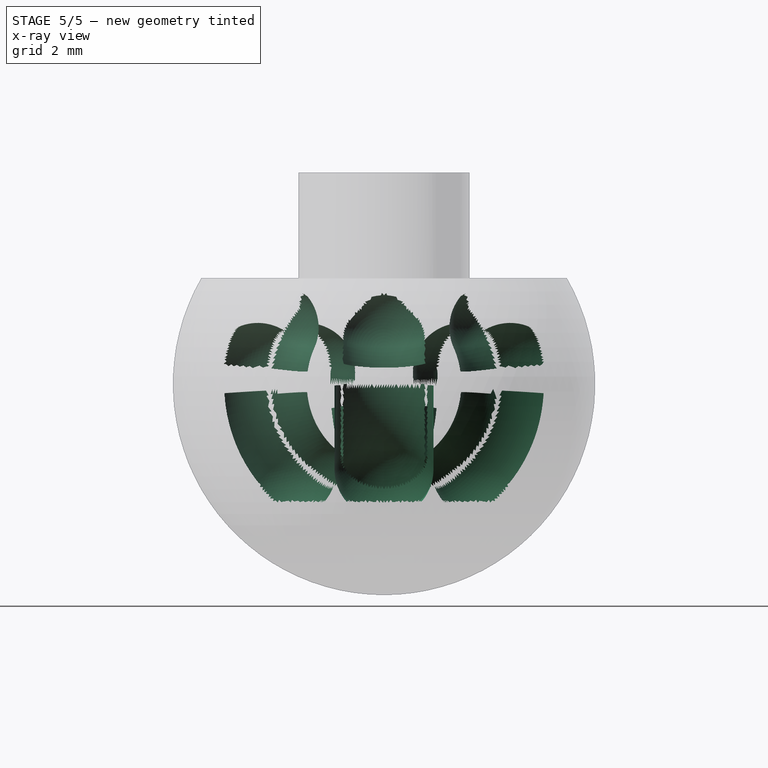
[diagram: stage 5 of 5 — x-ray composite at the right view; earlier geometry ghosted, this stage's added geometry solid]
FEATURE [PartDesign::Body] Body005  label="rzeppa ball tracks for cage"
  AllowCompound = true
  Group = -> [Boolean,PolarPattern]
  Origin = -> Origin009
  Tip = -> PolarPattern
FEATURE [PartDesign::FeatureBase] Clone
  BaseFeature = -> Body005
  Suppressed = false
FEATURE [PartDesign::Body] Body006  label="clone of track pattern"
  AllowCompound = false
  Group = -> [Clone]
  Origin = -> Origin010
  Tip = -> Clone
FEATURE [Part::Cut] Cut001  label="rzeppa cage"
  Base = -> Body001
  Refine = true
  Tool = -> Body006
FEATURE [PartDesign::Body] Body047  label="ball track for race"
  AllowCompound = true
  Group = -> [Sketch049,Sketch048,AdditivePipe002,DatumPlane,DatumPlane001,Sketch,Revolution,Revolution018,Sketch054,PolarPattern012]
  Origin = -> Origin064
  Tip = -> PolarPattern012
FEATURE [PartDesign::FeatureBase] Clone016
  BaseFeature = -> Body047
  Suppressed = false
FEATURE [PartDesign::Body] Body051  label="clone of rzeppa ball tracks001"
  AllowCompound = false
  Group = -> [Clone017]
  Origin = -> Origin069
  Tip = -> Clone017
FEATURE [Part::Cut] Cut  label="rzeppa inner race"
  Base = -> Body049
  Refine = true
  Tool = -> Body
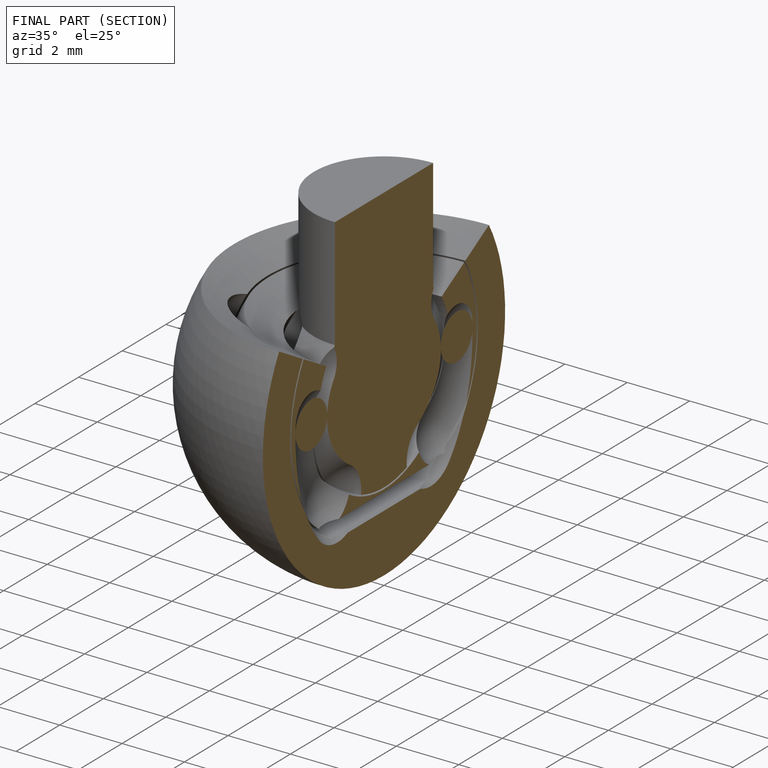
[diagram: finished part — half-section view (interior)]
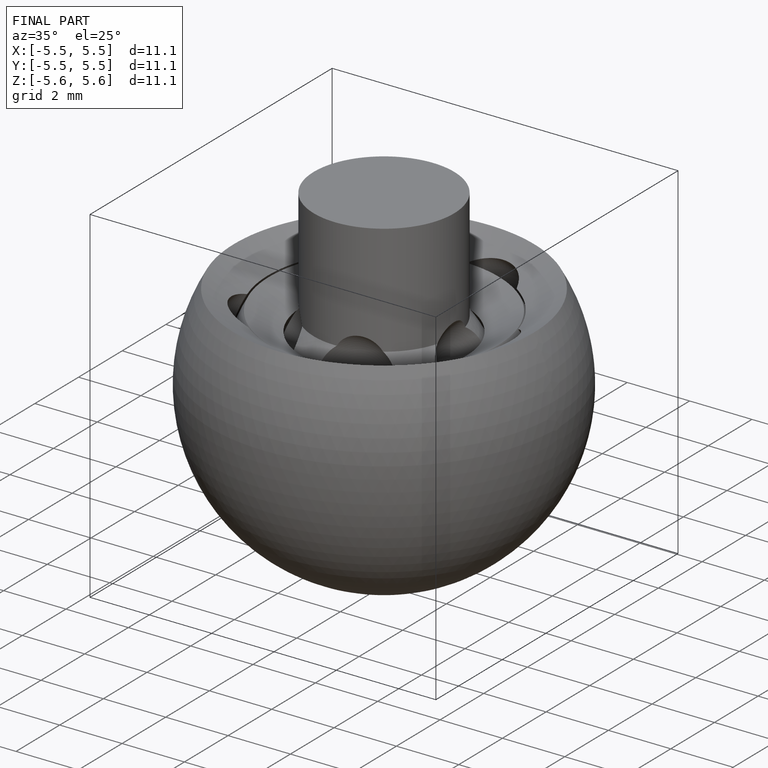
[diagram: finished part — iso view with bounding-box wireframe]
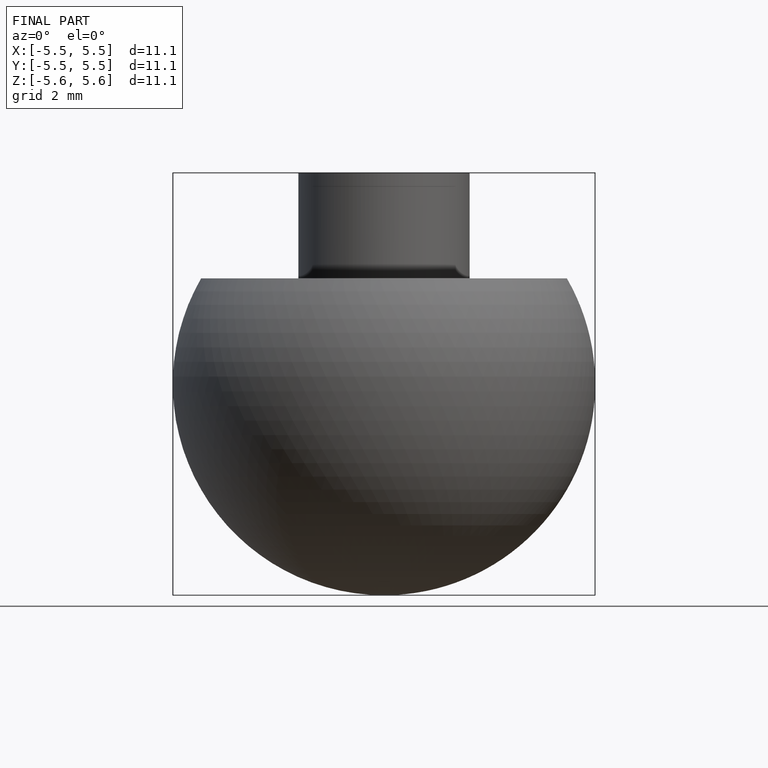
[diagram: finished part — front view with bounding-box wireframe]
